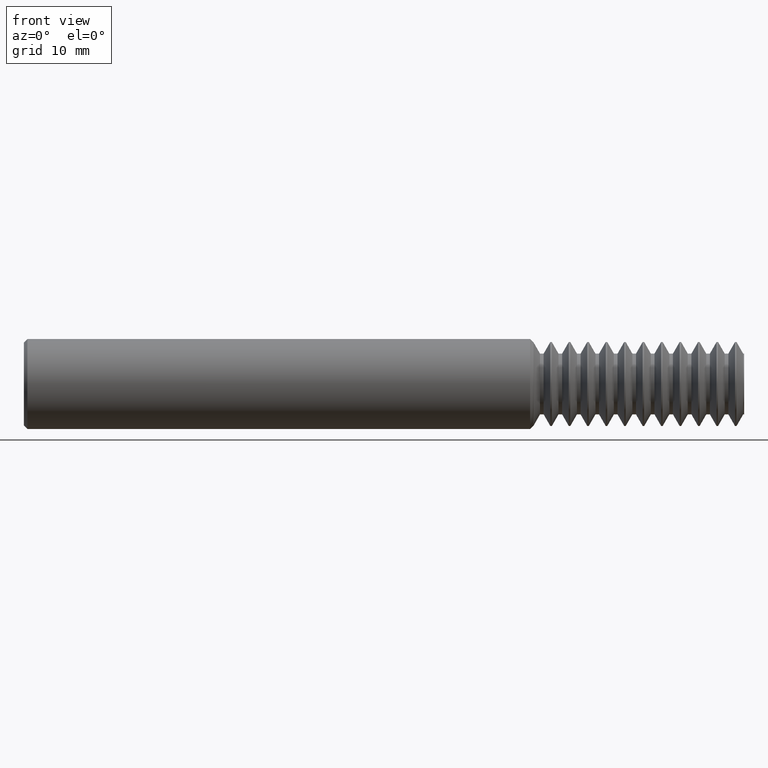
[diagram: clean part render]
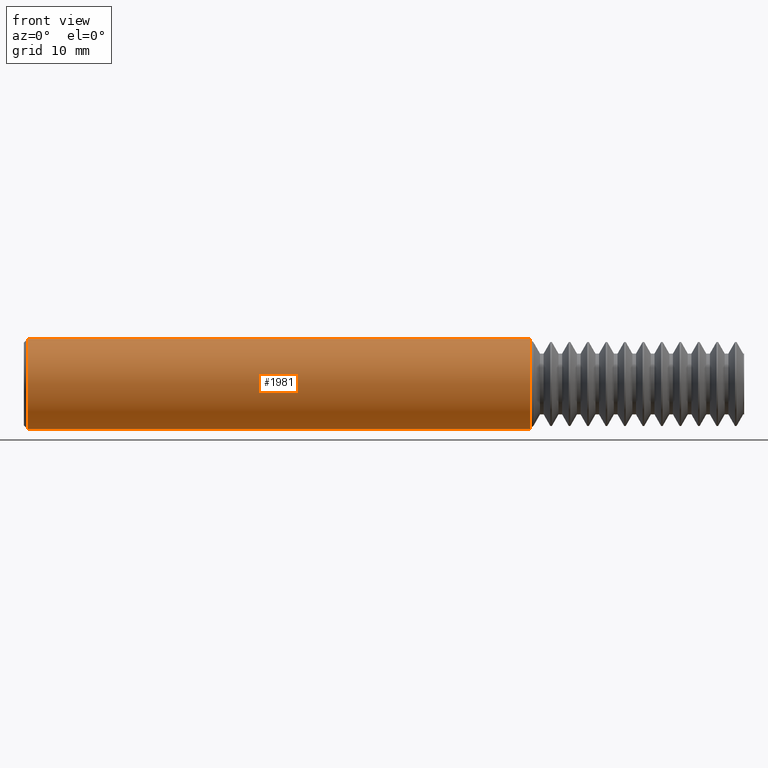
[diagram: same view with one face highlighted and labeled with its STEP entity id]
A machine part, front view. The second image highlights one B-rep face of the part: STEP entity #1981.
In plain terms, the highlighted cylindrical surface (partial cylindrical patch) has radius 4.7587 mm, axis along (1, -0, -0).
Its self-contained STEP definition (entity closure, byte-faithful):
#134 = VECTOR ( 'NONE', #2158, 39.37007874015748143 ) ;
#213 = EDGE_CURVE ( 'NONE', #1558, #756, #392, .T. ) ;
#375 = CARTESIAN_POINT ( 'NONE',  ( 3.000000000000000444, 0.000000000000000000, -0.1873499999999999888 ) ) ;
#392 = CIRCLE ( 'NONE', #467, 0.1873499999999999888 ) ;
#442 = VECTOR ( 'NONE', #1899, 39.37007874015748143 ) ;
#467 = AXIS2_PLACEMENT_3D ( 'NONE', #2181, #975, #1197 ) ;
#496 = VERTEX_POINT ( 'NONE', #2312 ) ;
#527 = DIRECTION ( 'NONE',  ( 0.000000000000000000, 0.000000000000000000, -1.000000000000000000 ) ) ;
#570 = DIRECTION ( 'NONE',  ( 1.000000000000000000, -0.000000000000000000, -0.000000000000000000 ) ) ;
#656 = EDGE_CURVE ( 'NONE', #756, #1886, #1611, .T. ) ;
#756 = VERTEX_POINT ( 'NONE', #1875 ) ;
#906 = EDGE_CURVE ( 'NONE', #496, #1886, #1155, .T. ) ;
#975 = DIRECTION ( 'NONE',  ( 1.000000000000000000, -0.000000000000000000, -0.000000000000000000 ) ) ;
#1096 = CARTESIAN_POINT ( 'NONE',  ( 2.108649999999999913, 0.000000000000000000, 0.000000000000000000 ) ) ;
#1124 = DIRECTION ( 'NONE',  ( 1.000000000000000000, -0.000000000000000000, -0.000000000000000000 ) ) ;
#1155 = CIRCLE ( 'NONE', #2080, 0.1873499999999999888 ) ;
#1197 = DIRECTION ( 'NONE',  ( 0.000000000000000000, 0.000000000000000000, 1.000000000000000000 ) ) ;
#1286 = CARTESIAN_POINT ( 'NONE',  ( 3.000000000000000444, 2.294375778202566330E-17, 0.1873499999999999888 ) ) ;
#1375 = DIRECTION ( 'NONE',  ( 0.000000000000000000, 0.000000000000000000, -1.000000000000000000 ) ) ;
#1551 = EDGE_LOOP ( 'NONE', ( #2442, #1971, #2352, #1930 ) ) ;
#1558 = VERTEX_POINT ( 'NONE', #1593 ) ;
#1593 = CARTESIAN_POINT ( 'NONE',  ( 0.01500000000000134212, 2.294375778202566330E-17, 0.1873499999999999888 ) ) ;
#1611 = LINE ( 'NONE', #375, #134 ) ;
#1762 = FACE_OUTER_BOUND ( 'NONE', #1551, .T. ) ;
#1791 = CARTESIAN_POINT ( 'NONE',  ( 2.108649999999999913, 0.000000000000000000, -0.1873499999999999888 ) ) ;
#1875 = CARTESIAN_POINT ( 'NONE',  ( 0.01500000000000134212, 0.000000000000000000, -0.1873499999999999888 ) ) ;
#1886 = VERTEX_POINT ( 'NONE', #1791 ) ;
#1899 = DIRECTION ( 'NONE',  ( 1.000000000000000000, -0.000000000000000000, -0.000000000000000000 ) ) ;
#1930 = ORIENTED_EDGE ( 'NONE', *, *, #906, .F. ) ;
#1971 = ORIENTED_EDGE ( 'NONE', *, *, #213, .T. ) ;
#1981 = ADVANCED_FACE ( 'NONE', ( #1762 ), #2586, .T. ) ;
#2066 = LINE ( 'NONE', #1286, #442 ) ;
#2080 = AXIS2_PLACEMENT_3D ( 'NONE', #1096, #1124, #527 ) ;
#2158 = DIRECTION ( 'NONE',  ( 1.000000000000000000, -0.000000000000000000, -0.000000000000000000 ) ) ;
#2181 = CARTESIAN_POINT ( 'NONE',  ( 0.01500000000000134212, 0.000000000000000000, 0.000000000000000000 ) ) ;
#2296 = AXIS2_PLACEMENT_3D ( 'NONE', #2385, #570, #1375 ) ;
#2312 = CARTESIAN_POINT ( 'NONE',  ( 2.108649999999999913, 2.294375778202566330E-17, 0.1873499999999999888 ) ) ;
#2352 = ORIENTED_EDGE ( 'NONE', *, *, #656, .T. ) ;
#2385 = CARTESIAN_POINT ( 'NONE',  ( 3.000000000000000444, 0.000000000000000000, 0.000000000000000000 ) ) ;
#2442 = ORIENTED_EDGE ( 'NONE', *, *, #2598, .F. ) ;
#2586 = CYLINDRICAL_SURFACE ( 'NONE', #2296, 0.1873499999999999888 ) ;
#2598 = EDGE_CURVE ( 'NONE', #1558, #496, #2066, .T. ) ;